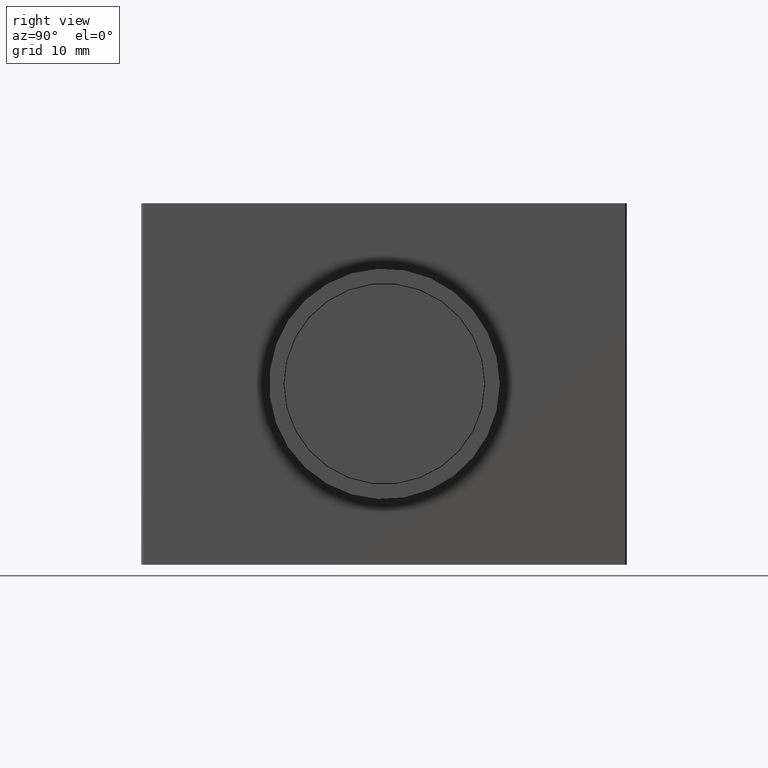
[diagram: clean part render]
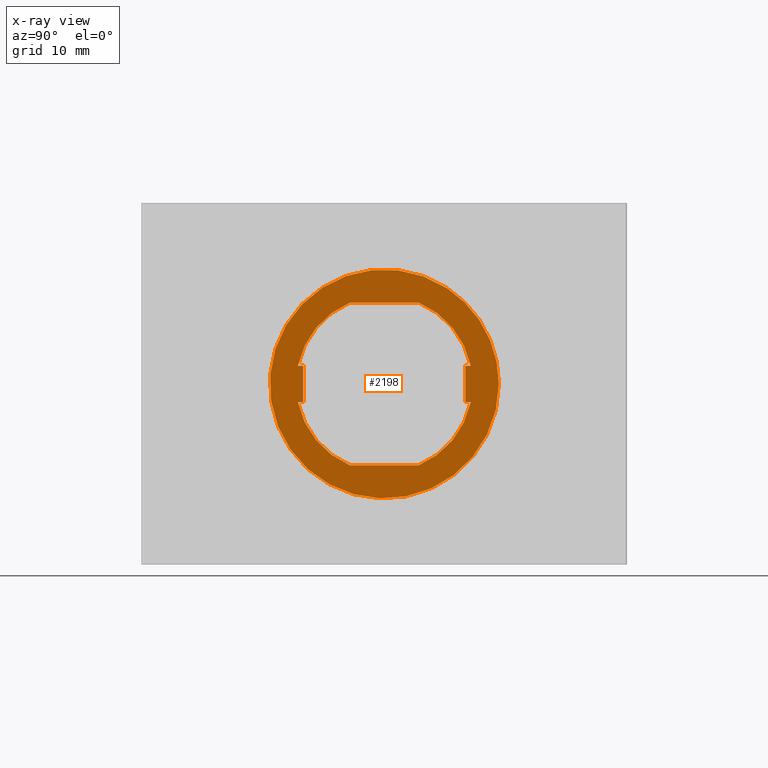
[diagram: x-ray — body ghosted, one internal face saturated and labeled with its STEP entity id]
A machine part, right view, then the same camera in x-ray: the body is ghosted and one INTERNAL B-rep face — a face not visible from any outside direction — is saturated and labeled: STEP entity #2198.
In plain terms, the highlighted planar face has unit normal (-1, 0, 0).
Its self-contained STEP definition (entity closure, byte-faithful):
#2000=CARTESIAN_POINT('',(-0.522597079042568,4.989701759657186,10.150000000000002));
#2001=VERTEX_POINT('',#2000);
#2016=CARTESIAN_POINT('',(-0.522597079042568,-3.490274655404356,10.150000000000006));
#2017=VERTEX_POINT('',#2016);
#2024=CARTESIAN_POINT('',(-0.522597079042568,4.989701759657186,10.150000000000002));
#2025=DIRECTION('',(0.0,-1.0,0.0));
#2026=VECTOR('',#2025,8.479976415061541);
#2027=LINE('',#2024,#2026);
#2028=EDGE_CURVE('',#2001,#2017,#2027,.T.);
#2040=CARTESIAN_POINT('',(-0.522597079042568,-3.490274655404366,-10.150000000000002));
#2041=VERTEX_POINT('',#2040);
#2056=CARTESIAN_POINT('',(-0.522597079042568,4.989701759657176,-10.150000000000006));
#2057=VERTEX_POINT('',#2056);
#2064=CARTESIAN_POINT('',(-0.522597079042568,-3.490274655404366,-10.150000000000002));
#2065=DIRECTION('',(0.0,1.0,0.0));
#2066=VECTOR('',#2065,8.479976415061543);
#2067=LINE('',#2064,#2066);
#2068=EDGE_CURVE('',#2041,#2057,#2067,.T.);
#2088=CARTESIAN_POINT('',(-0.522597079042570,-10.017714181552609,2.250000000000003));
#2089=VERTEX_POINT('',#2088);
#2096=CARTESIAN_POINT('',(-0.522597079042568,0.749713552126411,0.0));
#2097=DIRECTION('',(1.0,1.449993E-013,0.0));
#2098=DIRECTION('',(-1.449993E-013,1.0,0.0));
#2099=AXIS2_PLACEMENT_3D('',#2096,#2097,#2098);
#2100=CIRCLE('',#2099,11.000000000000005);
#2101=EDGE_CURVE('',#2017,#2089,#2100,.T.);
#2106=CARTESIAN_POINT('',(-0.522597079042569,13.374713552126416,0.0));
#2107=DIRECTION('',(-1.0,0.0,0.0));
#2108=DIRECTION('',(0.0,0.0,1.0));
#2109=AXIS2_PLACEMENT_3D('',#2106,#2107,#2108);
#2110=PLANE('',#2109);
#2111=CARTESIAN_POINT('',(-0.522597079042570,8.551472355752052,11.924556996804954));
#2112=VERTEX_POINT('',#2111);
#2113=CARTESIAN_POINT('',(-0.522597079042569,0.749713552126411,0.0));
#2114=DIRECTION('',(1.0,1.449993E-013,0.0));
#2115=DIRECTION('',(-1.449993E-013,1.0,0.0));
#2116=AXIS2_PLACEMENT_3D('',#2113,#2114,#2115);
#2117=CIRCLE('',#2116,14.250000000000007);
#2118=EDGE_CURVE('',#2112,#2112,#2117,.T.);
#2119=ORIENTED_EDGE('',*,*,#2118,.F.);
#2120=EDGE_LOOP('',(#2119));
#2121=FACE_OUTER_BOUND('',#2120,.T.);
#2122=ORIENTED_EDGE('',*,*,#2101,.T.);
#2123=CARTESIAN_POINT('',(-0.522597079042570,-9.350286447873589,2.250000000000003));
#2124=VERTEX_POINT('',#2123);
#2125=CARTESIAN_POINT('',(-0.522597079042570,-10.017714181552609,2.250000000000003));
#2126=DIRECTION('',(0.0,1.0,0.0));
#2127=VECTOR('',#2126,0.667427733679020);
#2128=LINE('',#2125,#2127);
#2129=EDGE_CURVE('',#2089,#2124,#2128,.T.);
#2130=ORIENTED_EDGE('',*,*,#2129,.T.);
#2131=CARTESIAN_POINT('',(-0.522597079042570,-9.350286447873589,-2.249999999999997));
#2132=VERTEX_POINT('',#2131);
#2133=CARTESIAN_POINT('',(-0.522597079042570,-9.350286447873589,2.250000000000003));
#2134=DIRECTION('',(0.0,0.0,-1.0));
#2135=VECTOR('',#2134,4.500000000000000);
#2136=LINE('',#2133,#2135);
#2137=EDGE_CURVE('',#2124,#2132,#2136,.T.);
#2138=ORIENTED_EDGE('',*,*,#2137,.T.);
#2139=CARTESIAN_POINT('',(-0.522597079042570,-10.017714181552609,-2.249999999999997));
#2140=VERTEX_POINT('',#2139);
#2141=CARTESIAN_POINT('',(-0.522597079042570,-9.350286447873589,-2.249999999999997));
#2142=DIRECTION('',(0.0,-1.0,0.0));
#2143=VECTOR('',#2142,0.667427733679020);
#2144=LINE('',#2141,#2143);
#2145=EDGE_CURVE('',#2132,#2140,#2144,.T.);
#2146=ORIENTED_EDGE('',*,*,#2145,.T.);
#2147=CARTESIAN_POINT('',(-0.522597079042568,0.749713552126411,0.0));
#2148=DIRECTION('',(1.0,1.449993E-013,0.0));
#2149=DIRECTION('',(-1.449993E-013,1.0,0.0));
#2150=AXIS2_PLACEMENT_3D('',#2147,#2148,#2149);
#2151=CIRCLE('',#2150,11.000000000000005);
#2152=EDGE_CURVE('',#2140,#2041,#2151,.T.);
#2153=ORIENTED_EDGE('',*,*,#2152,.T.);
#2154=ORIENTED_EDGE('',*,*,#2068,.T.);
#2155=CARTESIAN_POINT('',(-0.522597079042573,11.517141285805426,-2.250000000000001));
#2156=VERTEX_POINT('',#2155);
#2157=CARTESIAN_POINT('',(-0.522597079042568,0.749713552126411,0.0));
#2158=DIRECTION('',(1.0,1.449993E-013,0.0));
#2159=DIRECTION('',(-1.449993E-013,1.0,0.0));
#2160=AXIS2_PLACEMENT_3D('',#2157,#2158,#2159);
#2161=CIRCLE('',#2160,11.000000000000005);
#2162=EDGE_CURVE('',#2057,#2156,#2161,.T.);
#2163=ORIENTED_EDGE('',*,*,#2162,.T.);
#2164=CARTESIAN_POINT('',(-0.522597079042573,10.849713552126410,-2.250000000000001));
#2165=VERTEX_POINT('',#2164);
#2166=CARTESIAN_POINT('',(-0.522597079042573,11.517141285805426,-2.250000000000001));
#2167=DIRECTION('',(0.0,-1.0,0.0));
#2168=VECTOR('',#2167,0.667427733679016);
#2169=LINE('',#2166,#2168);
#2170=EDGE_CURVE('',#2156,#2165,#2169,.T.);
#2171=ORIENTED_EDGE('',*,*,#2170,.T.);
#2172=CARTESIAN_POINT('',(-0.522597079042573,10.849713552126410,2.249999999999999));
#2173=VERTEX_POINT('',#2172);
#2174=CARTESIAN_POINT('',(-0.522597079042573,10.849713552126410,-2.250000000000001));
#2175=DIRECTION('',(0.0,0.0,1.0));
#2176=VECTOR('',#2175,4.500000000000000);
#2177=LINE('',#2174,#2176);
#2178=EDGE_CURVE('',#2165,#2173,#2177,.T.);
#2179=ORIENTED_EDGE('',*,*,#2178,.T.);
#2180=CARTESIAN_POINT('',(-0.522597079042573,11.517141285805428,2.249999999999999));
#2181=VERTEX_POINT('',#2180);
#2182=CARTESIAN_POINT('',(-0.522597079042573,10.849713552126410,2.249999999999999));
#2183=DIRECTION('',(0.0,1.0,0.0));
#2184=VECTOR('',#2183,0.667427733679018);
#2185=LINE('',#2182,#2184);
#2186=EDGE_CURVE('',#2173,#2181,#2185,.T.);
#2187=ORIENTED_EDGE('',*,*,#2186,.T.);
#2188=CARTESIAN_POINT('',(-0.522597079042568,0.749713552126411,0.0));
#2189=DIRECTION('',(1.0,1.449993E-013,0.0));
#2190=DIRECTION('',(-1.449993E-013,1.0,0.0));
#2191=AXIS2_PLACEMENT_3D('',#2188,#2189,#2190);
#2192=CIRCLE('',#2191,11.000000000000005);
#2193=EDGE_CURVE('',#2181,#2001,#2192,.T.);
#2194=ORIENTED_EDGE('',*,*,#2193,.T.);
#2195=ORIENTED_EDGE('',*,*,#2028,.T.);
#2196=EDGE_LOOP('',(#2122,#2130,#2138,#2146,#2153,#2154,#2163,#2171,#2179,#2187,#2194,#2195));
#2197=FACE_BOUND('',#2196,.T.);
#2198=ADVANCED_FACE('',(#2121,#2197),#2110,.T.);